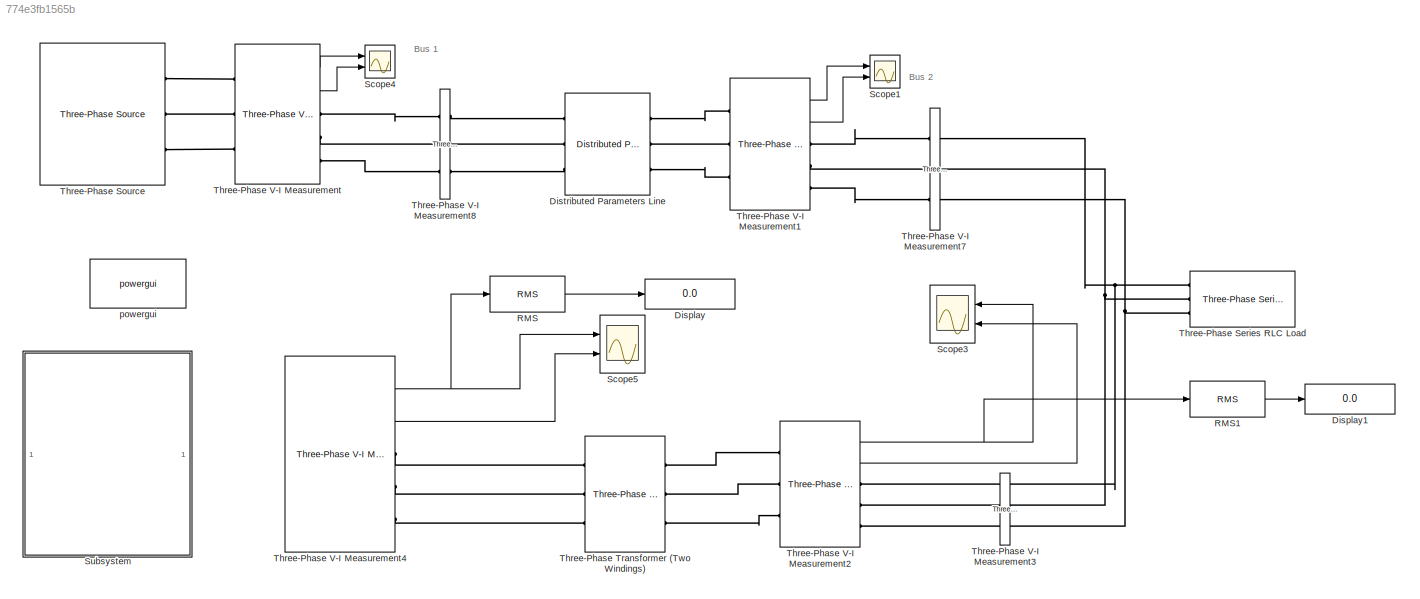
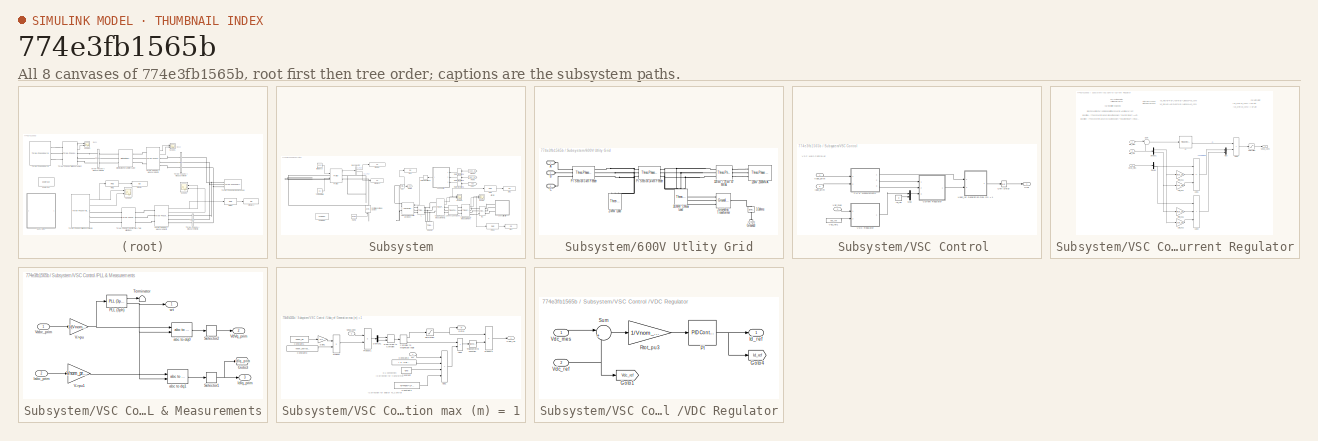
[diagram: thumbnail index - all 8 canvases of the model, root first then tree order]
MODEL slx_774e3fb1565b
KIND model
CONFIG AbsTol = auto
CONFIG EnableMultiTasking = off
CONFIG FixedStep = auto
CONFIG MaxStep = auto
CONFIG MinStep = auto
CONFIG RelTol = 1e-3
CONFIG SampleTimeConstraint = Unconstrained
CONFIG Solver = VariableStepAuto
CONFIG SolverName = VariableStepAuto
CONFIG StartTime = 0.0
CONFIG StopTime = 0.1
BLOCK [Display] Display
  Decimation = 1
  Ports = [1]
BLOCK [Display] Display1
  Decimation = 1
  Ports = [1]
BLOCK [Reference] Distributed Parameters Line  REF=powerlib/Elements/Distributed Parameters Line
  Ports = [0, 0, 0, 0, 0, 3, 3]
  SourceBlock = powerlib/Elements/Distributed Parameters Line
  SourceProductBaseCode = PS
  SourceType = Distributed Parameters Line
BLOCK [Reference] RMS  REF=dspstat3/RMS
  Ports = [1, 1]
  SourceBlock = dspstat3/RMS
  SourceProductBaseCode = DS
  SourceType = RMS
  UserDataPersistent = on
BLOCK [Reference] RMS1  REF=dspstat3/RMS
  Ports = [1, 1]
  SourceBlock = dspstat3/RMS
  SourceProductBaseCode = DS
  SourceType = RMS
  UserDataPersistent = on
BLOCK [Scope] Scope1
  Floating = off
  NumInputPorts = 2
  Ports = [2]
  ScopeSpecificationString = Simulink.scopes.TimeScopeBlockCfg('CurrentConfiguration', extmgr.ConfigurationSet(extmgr.Configuration('Core','General UI',true,'FigureColor',[1 1 1]),extmgr.Configuration('Core','Source UI',true),extmgr.Configuration('Sources','WiredSimulink',true,'DataLoggingVariableName','ScopeData1','DataLoggingSaveFormat','StructureWithTime','DataLoggingDecimation','1','DataLoggingDecimateData',true),extmgr.C...<+4305ch>
BLOCK [Scope] Scope3
  Floating = off
  NumInputPorts = 2
  Ports = [2]
  ScopeSpecificationString = Simulink.scopes.TimeScopeBlockCfg('CurrentConfiguration', extmgr.ConfigurationSet(extmgr.Configuration('Core','General UI',true,'FigureColor',[1 1 1]),extmgr.Configuration('Core','Source UI',true),extmgr.Configuration('Sources','WiredSimulink',true,'DataLoggingVariableName','ScopeData8','DataLoggingSaveFormat','StructureWithTime','DataLoggingMaxPoints','10000000','DataLoggingLimitDataPoints',true,...<+4499ch>
BLOCK [Scope] Scope4
  Floating = off
  NumInputPorts = 2
  Ports = [2]
  ScopeSpecificationString = Simulink.scopes.TimeScopeBlockCfg('CurrentConfiguration', extmgr.ConfigurationSet(extmgr.Configuration('Core','General UI',true,'FigureColor',[1 1 1]),extmgr.Configuration('Core','Source UI',true),extmgr.Configuration('Sources','WiredSimulink',true,'DataLoggingVariableName','ScopeData4','DataLoggingSaveFormat','StructureWithTime','DataLoggingDecimation','1','DataLoggingDecimateData',true),extmgr.C...<+4284ch>
BLOCK [Scope] Scope5
  Floating = off
  NumInputPorts = 2
  Ports = [2]
  ScopeSpecificationString = Simulink.scopes.TimeScopeBlockCfg('CurrentConfiguration', extmgr.ConfigurationSet(extmgr.Configuration('Core','General UI',true,'FigureColor',[1 1 1]),extmgr.Configuration('Core','Source UI',true),extmgr.Configuration('Sources','WiredSimulink',true,'DataLoggingVariableName','ScopeData9','DataLoggingSaveFormat','StructureWithTime','DataLoggingMaxPoints','10000000','DataLoggingLimitDataPoints',true,...<+4501ch>
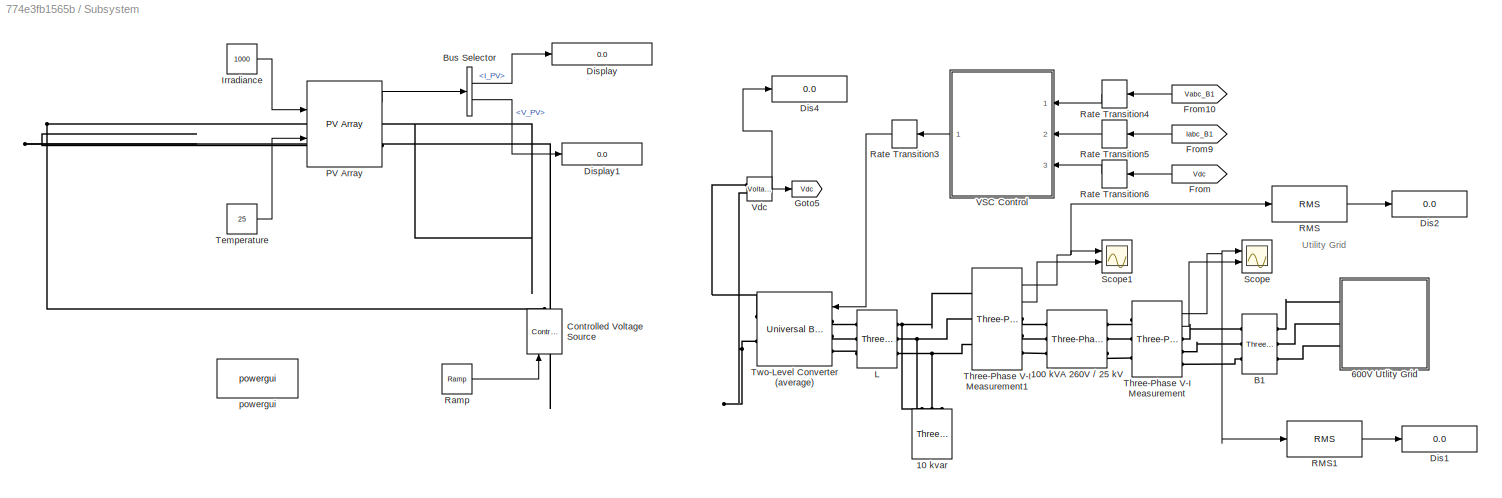
BLOCK [SubSystem] Subsystem
  Ports = []
  RequestExecContextInheritance = off
BLOCK [Reference] Subsystem/10 kvar  REF=powerlib/Elements/Three-Phase
Series RLC Load
  AttributesFormatString = \n
  NameLocation = right
  Ports = [0, 0, 0, 0, 0, 3]
  SourceBlock = powerlib/Elements/Three-Phase\nSeries RLC Load
  SourceProductBaseCode = PS
  SourceType = Three-Phase Series RLC Load
BLOCK [Reference] Subsystem/100 kVA 260V // 25 kV  REF=powerlib/Elements/Three-Phase
Transformer
(Two Windings)
  AttributesFormatString = \n
  Ports = [0, 0, 0, 0, 0, 3, 3]
  SourceBlock = powerlib/Elements/Three-Phase\nTransformer\n(Two Windings)
  SourceProductBaseCode = PS
  SourceType = Three-Phase Transformer (Two Windings)
BLOCK [SubSystem] Subsystem/600V Utlity Grid
  Ports = [0, 0, 0, 0, 0, 3]
  RequestExecContextInheritance = off
BLOCK [Reference] Subsystem/600V Utlity Grid/120 kV // 25 kV 47 MVA  REF=powerlib/Elements/Three-Phase
Transformer
(Two Windings)
  AttributesFormatString = \n
  Ports = [0, 0, 0, 0, 0, 3, 3]
  SourceBlock = powerlib/Elements/Three-Phase\nTransformer\n(Two Windings)
  SourceProductBaseCode = PS
  SourceType = Three-Phase Transformer (Two Windings)
BLOCK [Reference] Subsystem/600V Utlity Grid/120kV 2500MVA  REF=powerlib/Electrical
Sources/Three-Phase Source
  Ports = [0, 0, 0, 0, 0, 0, 3]
  SourceBlock = powerlib/Electrical\nSources/Three-Phase Source
  SourceProductBaseCode = PS
  SourceType = Three-Phase Source
BLOCK [Reference] Subsystem/600V Utlity Grid/2-MW Load  REF=powerlib/Elements/Three-Phase
Parallel RLC Load
  AttributesFormatString = \n
  NameLocation = left
  Ports = [0, 0, 0, 0, 0, 3]
  SourceBlock = powerlib/Elements/Three-Phase\nParallel RLC Load
  SourceProductBaseCode = PS
  SourceType = Three-Phase Parallel RLC Load
BLOCK [Reference] Subsystem/600V Utlity Grid/3.3ohms   REF=powerlib/Elements/Series RLC Branch
  NameLocation = right
  Ports = [0, 0, 0, 0, 0, 1, 1]
  SourceBlock = powerlib/Elements/Series RLC Branch
  SourceProductBaseCode = PS
  SourceType = Series RLC Branch
BLOCK [Reference] Subsystem/600V Utlity Grid/30-MW 2-Mvar Load  REF=powerlib/Elements/Three-Phase
Parallel RLC Load
  AttributesFormatString = \n
  NameLocation = left
  Ports = [0, 0, 0, 0, 0, 3]
  SourceBlock = powerlib/Elements/Three-Phase\nParallel RLC Load
  SourceProductBaseCode = PS
  SourceType = Three-Phase Parallel RLC Load
BLOCK [PMIOPort] Subsystem/600V Utlity Grid/A
  Side = Left
BLOCK [PMIOPort] Subsystem/600V Utlity Grid/B
  Port = 2
  Side = Left
BLOCK [PMIOPort] Subsystem/600V Utlity Grid/C
  Port = 3
  Side = Left
BLOCK [Reference] Subsystem/600V Utlity Grid/Ground3  REF=powerlib/Elements/Ground
  AttributesFormatString = \n
  NameLocation = right
  Ports = [0, 0, 0, 0, 0, 1]
  SourceBlock = powerlib/Elements/Ground
  SourceProductBaseCode = PS
  SourceType = Ground
BLOCK [Reference] Subsystem/600V Utlity Grid/Grounding Transformer   REF=powerlib/Elements/Grounding
Transformer 
  Ports = [0, 0, 0, 0, 0, 3, 1]
  SourceBlock = powerlib/Elements/Grounding\nTransformer
  SourceProductBaseCode = PS
  SourceType = Grounding Transformer
BLOCK [Reference] Subsystem/600V Utlity Grid/PI Section 14 km Feeder  REF=powerlib/Elements/Three-Phase
PI Section Line
  AttributesFormatString = \n
  Ports = [0, 0, 0, 0, 0, 3, 3]
  SourceBlock = powerlib/Elements/Three-Phase\nPI Section Line
  SourceProductBaseCode = PS
  SourceType = Three-Phase PI Section Line
BLOCK [Reference] Subsystem/600V Utlity Grid/PI Section 5 km Feeder  REF=powerlib/Elements/Three-Phase
PI Section Line
  AttributesFormatString = \n
  Ports = [0, 0, 0, 0, 0, 3, 3]
  SourceBlock = powerlib/Elements/Three-Phase\nPI Section Line
  SourceProductBaseCode = PS
  SourceType = Three-Phase PI Section Line
BLOCK [Reference] Subsystem/B1  REF=powerlib/Measurements/Three-Phase
V-I Measurement
  Ports = [0, 0, 0, 0, 0, 3, 3]
  SourceBlock = powerlib/Measurements/Three-Phase\nV-I Measurement
  SourceProductBaseCode = PS
  SourceType = Three-Phase VI Measurement
BLOCK [BusSelector] Subsystem/Bus Selector
  OutputSignals = I_PV,V_PV
  Ports = [1, 2]
BLOCK [Reference] Subsystem/Controlled Voltage Source  REF=powerlib/Electrical
Sources/Controlled Voltage Source
  NameLocation = right
  Ports = [1, 0, 0, 0, 0, 1, 1]
  SourceBlock = powerlib/Electrical\nSources/Controlled Voltage Source
  SourceProductBaseCode = PS
  SourceType = Controlled Voltage Source
BLOCK [Display] Subsystem/Dis1
  Decimation = 2000
  Format = bank
  Ports = [1]
BLOCK [Display] Subsystem/Dis2
  Decimation = 2000
  Format = bank
  Ports = [1]
BLOCK [Display] Subsystem/Dis4
  Decimation = 2000
  Format = bank
  Ports = [1]
BLOCK [Display] Subsystem/Display
  Decimation = 1
  Ports = [1]
BLOCK [Display] Subsystem/Display1
  Decimation = 1
  Ports = [1]
BLOCK [From] Subsystem/From
  GotoTag = Vdc
  TagVisibility = global
BLOCK [From] Subsystem/From10
  CloseFcn = tagdialog Close
  GotoTag = Vabc_B1
  TagVisibility = global
BLOCK [From] Subsystem/From9
  CloseFcn = tagdialog Close
  GotoTag = Iabc_B1
  TagVisibility = global
BLOCK [Goto] Subsystem/Goto5
  GotoTag = Vdc
  TagVisibility = global
BLOCK [Constant] Subsystem/Irradiance
  Value = 1000
BLOCK [Reference] Subsystem/L  REF=powerlib/Elements/Three-Phase
Series RLC Branch
  AttributesFormatString = \n
  Ports = [0, 0, 0, 0, 0, 3, 3]
  SourceBlock = powerlib/Elements/Three-Phase\nSeries RLC Branch
  SourceProductBaseCode = PS
  SourceType = Three-Phase Series RLC Branch
BLOCK [Reference] Subsystem/PV Array  REF=re_lib/Solar/PV Array
  Ports = [2, 1, 0, 0, 0, 0, 2]
  SourceBlock = re_lib/Solar/PV Array
  SourceProductBaseCode = PS
  SourceType = PV array
BLOCK [Reference] Subsystem/RMS  REF=dspstat3/RMS
  Ports = [1, 1]
  SourceBlock = dspstat3/RMS
  SourceProductBaseCode = DS
  SourceType = RMS
  UserDataPersistent = on
BLOCK [Reference] Subsystem/RMS1  REF=dspstat3/RMS
  Ports = [1, 1]
  SourceBlock = dspstat3/RMS
  SourceProductBaseCode = DS
  SourceType = RMS
  UserDataPersistent = on
BLOCK [Reference] Subsystem/Ramp  REF=simulink/Sources/Ramp
  Ports = [0, 1]
  SourceBlock = simulink/Sources/Ramp
  SourceProductBaseCode = SL
  SourceType = Ramp
BLOCK [RateTransition] Subsystem/Rate Transition3
  NameLocation = top
  OutPortSampleTime = Ts_Power
BLOCK [RateTransition] Subsystem/Rate Transition4
  OutPortSampleTime = Ts_Control
BLOCK [RateTransition] Subsystem/Rate Transition5
  OutPortSampleTime = Ts_Control
BLOCK [RateTransition] Subsystem/Rate Transition6
  OutPortSampleTime = Ts_Control
BLOCK [Scope] Subsystem/Scope
  Floating = off
  NumInputPorts = 2
  Ports = [2]
  ScopeSpecificationString = Simulink.scopes.TimeScopeBlockCfg('CurrentConfiguration', extmgr.ConfigurationSet(extmgr.Configuration('Core','General UI',true),extmgr.Configuration('Core','Source UI',true),extmgr.Configuration('Sources','WiredSimulink',true,'DataLoggingVariableName','ScopeData1'),extmgr.Configuration('Visuals','Time Domain',true,'SerializedDisplays',{struct('MinYLimReal','-24960.74448','MaxYLimReal','21962.5171...<+2321ch>
BLOCK [Scope] Subsystem/Scope1
  Floating = off
  NumInputPorts = 2
  Ports = [2]
  ScopeSpecificationString = Simulink.scopes.TimeScopeBlockCfg('CurrentConfiguration', extmgr.ConfigurationSet(extmgr.Configuration('Core','General UI',true),extmgr.Configuration('Core','Source UI',true),extmgr.Configuration('Sources','WiredSimulink',true,'DataLoggingVariableName','ScopeData2'),extmgr.Configuration('Visuals','Time Domain',true,'SerializedDisplays',{struct('MinYLimReal','-252.02274','MaxYLimReal','226.10401','...<+2321ch>
BLOCK [Constant] Subsystem/Temperature
  Value = 25
BLOCK [Reference] Subsystem/Three-Phase V-I Measurement  REF=powerlib/Measurements/Three-Phase
V-I Measurement
  Ports = [0, 2, 0, 0, 0, 3, 3]
  SourceBlock = powerlib/Measurements/Three-Phase\nV-I Measurement
  SourceProductBaseCode = PS
  SourceType = Three-Phase VI Measurement
BLOCK [Reference] Subsystem/Three-Phase V-I Measurement1  REF=powerlib/Measurements/Three-Phase
V-I Measurement
  Ports = [0, 2, 0, 0, 0, 3, 3]
  SourceBlock = powerlib/Measurements/Three-Phase\nV-I Measurement
  SourceProductBaseCode = PS
  SourceType = Three-Phase VI Measurement
BLOCK [Reference] Subsystem/Two-Level Converter (average)  REF=powerlib/Power
Electronics/Universal Bridge
  Ports = [1, 0, 0, 0, 0, 3, 2]
  SourceBlock = powerlib/Power\nElectronics/Universal Bridge
  SourceProductBaseCode = PS
  SourceType = Universal Bridge
BLOCK [SubSystem] Subsystem/VSC Control 
  NameLocation = top
  Ports = [3, 1]
  RequestExecContextInheritance = off
BLOCK [SubSystem] Subsystem/VSC Control /Current Regulator
  Ports = [3, 1]
  RequestExecContextInheritance = off
BLOCK [Sum] Subsystem/VSC Control /Current Regulator/Add1
  IconShape = rectangular
  Inputs = ++-
  Ports = [3, 1]
BLOCK [Sum] Subsystem/VSC Control /Current Regulator/Add2
  IconShape = rectangular
  Ports = [2, 1]
BLOCK [Sum] Subsystem/VSC Control /Current Regulator/Add3
  IconShape = rectangular
  Inputs = +++
  Ports = [3, 1]
BLOCK [Demux] Subsystem/VSC Control /Current Regulator/Demux
  Outputs = 2
  Ports = [1, 2]
BLOCK [Demux] Subsystem/VSC Control /Current Regulator/Demux1
  Outputs = 2
  Ports = [1, 2]
BLOCK [Inport] Subsystem/VSC Control /Current Regulator/IdIq_mes
  Port = 2
  PortDimensions = 2
BLOCK [Inport] Subsystem/VSC Control /Current Regulator/IdIq_ref
  Port = 3
  PortDimensions = 2
BLOCK [Gain] Subsystem/VSC Control /Current Regulator/Ltot_pu1
  Gain = Ltot_pu
  OutDataTypeStr = Inherit: Same as input
  ParamDataTypeStr = Inherit: Same as input
  SaturateOnIntegerOverflow = on
BLOCK [Gain] Subsystem/VSC Control /Current Regulator/Ltot_pu2
  Gain = Ltot_pu
  OutDataTypeStr = Inherit: Same as input
  ParamDataTypeStr = Inherit: Same as input
  SaturateOnIntegerOverflow = on
BLOCK [Mux] Subsystem/VSC Control /Current Regulator/Mux
  DisplayOption = bar
  Inputs = 2
  Ports = [2, 1]
BLOCK [Reference] Subsystem/VSC Control /Current Regulator/PI  REF=simulink/Continuous/PID Controller
  Ports = [1, 1]
  SourceBlock = simulink/Continuous/PID Controller
  SourceProductBaseCode = SL
  SourceType = PID 1dof
BLOCK [Gain] Subsystem/VSC Control /Current Regulator/Rtot_pu1
  Gain = Rtot_pu
  NameLocation = top
  OutDataTypeStr = Inherit: Same as input
  ParamDataTypeStr = Inherit: Same as input
  SaturateOnIntegerOverflow = on
BLOCK [Gain] Subsystem/VSC Control /Current Regulator/Rtot_pu5
  Gain = Rtot_pu
  NameLocation = top
  OutDataTypeStr = Inherit: Same as input
  ParamDataTypeStr = Inherit: Same as input
  SaturateOnIntegerOverflow = on
BLOCK [Saturate] Subsystem/VSC Control /Current Regulator/Saturation
  LowerLimit = -2
  UpperLimit = 2
BLOCK [Sum] Subsystem/VSC Control /Current Regulator/Sum
  Inputs = |-+
  Ports = [2, 1]
BLOCK [Outport] Subsystem/VSC Control /Current Regulator/VdVq_conv
  VectorParamsAs1DForOutWhenUnconnected = off
BLOCK [Inport] Subsystem/VSC Control /Current Regulator/VdVq_mes
  PortDimensions = 2
BLOCK [Inport] Subsystem/VSC Control /Iabc_prim
  Port = 2
  PortDimensions = 3
BLOCK [Constant] Subsystem/VSC Control /Iq_ref
  Value = 0
BLOCK [Mux] Subsystem/VSC Control /Mux
  DisplayOption = bar
  Inputs = 2
  Ports = [2, 1]
BLOCK [SubSystem] Subsystem/VSC Control /PLL & Measurements
  Ports = [2, 3]
  RequestExecContextInheritance = off
BLOCK [Goto] Subsystem/VSC Control /PLL & Measurements/Goto3
  GotoTag = IdIq_prim
  TagVisibility = global
BLOCK [Inport] Subsystem/VSC Control /PLL & Measurements/Iabc_prim
  Port = 2
BLOCK [Outport] Subsystem/VSC Control /PLL & Measurements/IdIq_prim
  Port = 3
  VectorParamsAs1DForOutWhenUnconnected = off
BLOCK [Reference] Subsystem/VSC Control /PLL & Measurements/PLL (3ph)  REF=powerlib_meascontrol/PLL/PLL
(3ph)
  Ports = [1, 2]
  SourceBlock = powerlib_meascontrol/PLL/PLL\n(3ph)
  SourceProductBaseCode = PS
  SourceType = PLL (3ph)
BLOCK [Selector] Subsystem/VSC Control /PLL & Measurements/Selector1
  IndexOptions = Index vector (dialog)
  Indices = [1 2]
  InputPortWidth = 3
  OutputSizes = 1
  Ports = [1, 1]
BLOCK [Selector] Subsystem/VSC Control /PLL & Measurements/Selector2
  IndexOptions = Index vector (dialog)
  Indices = [1 2]
  InputPortWidth = 3
  OutputSizes = 1
  Ports = [1, 1]
BLOCK [Terminator] Subsystem/VSC Control /PLL & Measurements/Terminator
BLOCK [Gain] Subsystem/VSC Control /PLL & Measurements/V->pu
  Gain = 1/(Vnom_prim*sqrt(2)/sqrt(3))
  OutDataTypeStr = Inherit: Same as input
  ParamDataTypeStr = Inherit: Same as input
  SaturateOnIntegerOverflow = on
BLOCK [Gain] Subsystem/VSC Control /PLL & Measurements/V->pu1
  Gain = Vnom_prim*sqrt(3)/Pnom/sqrt(2)
  OutDataTypeStr = Inherit: Same as input
  ParamDataTypeStr = Inherit: Same as input
  SaturateOnIntegerOverflow = on
BLOCK [Inport] Subsystem/VSC Control /PLL & Measurements/Vabc_prim
BLOCK [Outport] Subsystem/VSC Control /PLL & Measurements/VdVq_prim
  Port = 2
  VectorParamsAs1DForOutWhenUnconnected = off
BLOCK [Reference] Subsystem/VSC Control /PLL & Measurements/abc to dq0  REF=powerlib_meascontrol/Transformations/abc to dq0
  Ports = [2, 1]
  SourceBlock = powerlib_meascontrol/Transformations/abc to dq0
  SourceProductBaseCode = PS
  SourceType = abc to dq0 Transformation
BLOCK [Reference] Subsystem/VSC Control /PLL & Measurements/abc to dq1  REF=powerlib_meascontrol/Transformations/abc to dq0
  Ports = [2, 1]
  SourceBlock = powerlib_meascontrol/Transformations/abc to dq0
  SourceProductBaseCode = PS
  SourceType = abc to dq0 Transformation
BLOCK [Outport] Subsystem/VSC Control /PLL & Measurements/wt
  VectorParamsAs1DForOutWhenUnconnected = off
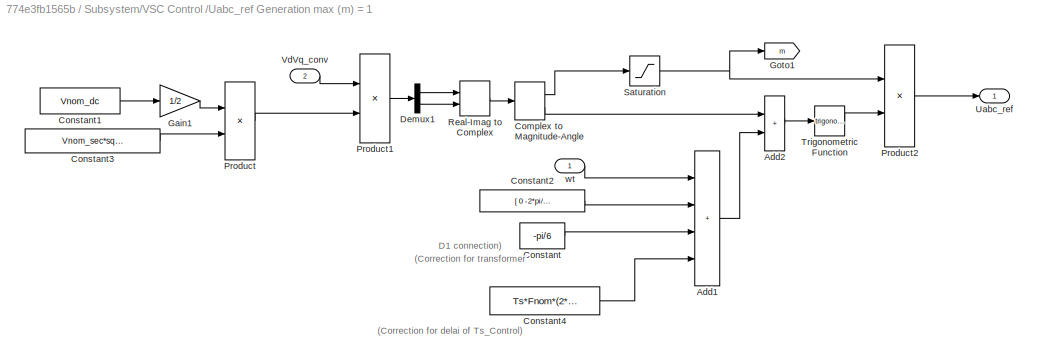
BLOCK [SubSystem] Subsystem/VSC Control /Uabc_ref Generation max (m) = 1
  Ports = [2, 1]
  RequestExecContextInheritance = off
BLOCK [Sum] Subsystem/VSC Control /Uabc_ref Generation max (m) = 1/Add1
  IconShape = rectangular
  Inputs = ++++
  Ports = [4, 1]
BLOCK [Sum] Subsystem/VSC Control /Uabc_ref Generation max (m) = 1/Add2
  IconShape = rectangular
  Ports = [2, 1]
BLOCK [ComplexToMagnitudeAngle] Subsystem/VSC Control /Uabc_ref Generation max (m) = 1/Complex to Magnitude-Angle
  Ports = [1, 2]
BLOCK [Constant] Subsystem/VSC Control /Uabc_ref Generation max (m) = 1/Constant
  Value = -pi/6
BLOCK [Constant] Subsystem/VSC Control /Uabc_ref Generation max (m) = 1/Constant1
  Value = Vnom_dc
BLOCK [Constant] Subsystem/VSC Control /Uabc_ref Generation max (m) = 1/Constant2
  Value = [ 0  -2*pi/3  2*pi/3  ]
BLOCK [Constant] Subsystem/VSC Control /Uabc_ref Generation max (m) = 1/Constant3
  Value = Vnom_sec*sqrt(2)/sqrt(3)
BLOCK [Constant] Subsystem/VSC Control /Uabc_ref Generation max (m) = 1/Constant4
  Value = Ts*Fnom*(2*pi)
BLOCK [Demux] Subsystem/VSC Control /Uabc_ref Generation max (m) = 1/Demux1
  Outputs = 2
  Ports = [1, 2]
BLOCK [Gain] Subsystem/VSC Control /Uabc_ref Generation max (m) = 1/Gain1
  Gain = 1/2
BLOCK [Goto] Subsystem/VSC Control /Uabc_ref Generation max (m) = 1/Goto1
  GotoTag = m
  TagVisibility = global
BLOCK [Product] Subsystem/VSC Control /Uabc_ref Generation max (m) = 1/Product
  Inputs = */
  Ports = [2, 1]
  RndMeth = Zero
BLOCK [Product] Subsystem/VSC Control /Uabc_ref Generation max (m) = 1/Product1
  Inputs = */
  Ports = [2, 1]
  RndMeth = Zero
BLOCK [Product] Subsystem/VSC Control /Uabc_ref Generation max (m) = 1/Product2
  Inputs = **
  Ports = [2, 1]
  RndMeth = Zero
BLOCK [RealImagToComplex] Subsystem/VSC Control /Uabc_ref Generation max (m) = 1/Real-Imag to Complex
  Ports = [2, 1]
BLOCK [Saturate] Subsystem/VSC Control /Uabc_ref Generation max (m) = 1/Saturation
  LowerLimit = 0
  UpperLimit = 1
BLOCK [Trigonometry] Subsystem/VSC Control /Uabc_ref Generation max (m) = 1/Trigonometric Function
  Ports = [1, 1]
BLOCK [Outport] Subsystem/VSC Control /Uabc_ref Generation max (m) = 1/Uabc_ref
  VectorParamsAs1DForOutWhenUnconnected = off
BLOCK [Inport] Subsystem/VSC Control /Uabc_ref Generation max (m) = 1/VdVq_conv
  Port = 2
BLOCK [Inport] Subsystem/VSC Control /Uabc_ref Generation max (m) = 1/wt
BLOCK [UnitDelay] Subsystem/VSC Control /Unit Delay
  HasFrameUpgradeWarning = on
  SampleTime = Ts_Control
BLOCK [Outport] Subsystem/VSC Control /Uref
  NameLocation = top
  VectorParamsAs1DForOutWhenUnconnected = off
BLOCK [SubSystem] Subsystem/VSC Control /VDC Regulator
  Ports = [2, 1]
  RequestExecContextInheritance = off
BLOCK [Goto] Subsystem/VSC Control /VDC Regulator/Goto1
  GotoTag = Vdc_ref
  TagVisibility = global
BLOCK [Goto] Subsystem/VSC Control /VDC Regulator/Goto4
  GotoTag = Id_ref
  TagVisibility = global
BLOCK [Outport] Subsystem/VSC Control /VDC Regulator/Id_ref
  InitialOutput = 0
  SampleTime = Ts
  VectorParamsAs1DForOutWhenUnconnected = off
BLOCK [Reference] Subsystem/VSC Control /VDC Regulator/PI  REF=simulink/Continuous/PID Controller
  Ports = [1, 1]
  SourceBlock = simulink/Continuous/PID Controller
  SourceProductBaseCode = SL
  SourceType = PID 1dof
BLOCK [Gain] Subsystem/VSC Control /VDC Regulator/Rtot_pu3
  Gain = 1/Vnom_dc
  OutDataTypeStr = Inherit: Same as input
  ParamDataTypeStr = Inherit: Same as input
  SaturateOnIntegerOverflow = on
BLOCK [Sum] Subsystem/VSC Control /VDC Regulator/Sum
  Inputs = |+-
  Ports = [2, 1]
BLOCK [Inport] Subsystem/VSC Control /VDC Regulator/Vdc_mes
  PortDimensions = 1
BLOCK [Inport] Subsystem/VSC Control /VDC Regulator/Vdc_ref
  Port = 2
  PortDimensions = 1
BLOCK [Inport] Subsystem/VSC Control /Vabc_prim
  PortDimensions = 3
BLOCK [Inport] Subsystem/VSC Control /Vdc_mes
  Port = 3
  PortDimensions = 1
BLOCK [Constant] Subsystem/VSC Control /Vdc_ref1
  Value = Vdc_ref
BLOCK [Reference] Subsystem/Vdc   REF=powerlib/Measurements/Voltage Measurement
  AttributesFormatString = \n
  NameLocation = top
  Ports = [0, 1, 0, 0, 0, 2]
  SourceBlock = powerlib/Measurements/Voltage Measurement
  SourceProductBaseCode = PS
  SourceType = Voltage Measurement
  Tag = PoWeRsYsTeMmEaSuReMeNt
BLOCK [Reference] Subsystem/powergui  REF=powerlib/powergui
  Ports = []
  Priority = 1
  SourceBlock = powerlib/powergui
  SourceProductBaseCode = PS
  SourceType = PSB option menu block
BLOCK [Reference] Three-Phase Series RLC Load  REF=powerlib/Elements/Three-Phase
Series RLC Load
  AttributesFormatString = \n
  NameLocation = top
  Ports = [0, 0, 0, 0, 0, 3]
  SourceBlock = powerlib/Elements/Three-Phase\nSeries RLC Load
  SourceProductBaseCode = PS
  SourceType = Three-Phase Series RLC Load
BLOCK [Reference] Three-Phase Source  REF=powerlib/Electrical
Sources/Three-Phase Source
  Ports = [0, 0, 0, 0, 0, 0, 3]
  SourceBlock = powerlib/Electrical\nSources/Three-Phase Source
  SourceProductBaseCode = PS
  SourceType = Three-Phase Source
BLOCK [Reference] Three-Phase Transformer (Two Windings)  REF=powerlib/Elements/Three-Phase
Transformer
(Two Windings)
  Ports = [0, 0, 0, 0, 0, 3, 3]
  SourceBlock = powerlib/Elements/Three-Phase\nTransformer\n(Two Windings)
  SourceProductBaseCode = PS
  SourceType = Three-Phase Transformer (Two Windings)
BLOCK [Reference] Three-Phase V-I Measurement  REF=powerlib/Measurements/Three-Phase
V-I Measurement
  Ports = [0, 2, 0, 0, 0, 3, 3]
  SourceBlock = powerlib/Measurements/Three-Phase\nV-I Measurement
  SourceProductBaseCode = PS
  SourceType = Three-Phase VI Measurement
BLOCK [Reference] Three-Phase V-I Measurement1  REF=powerlib/Measurements/Three-Phase
V-I Measurement
  Ports = [0, 2, 0, 0, 0, 3, 3]
  SourceBlock = powerlib/Measurements/Three-Phase\nV-I Measurement
  SourceProductBaseCode = PS
  SourceType = Three-Phase VI Measurement
BLOCK [Reference] Three-Phase V-I Measurement2  REF=powerlib/Measurements/Three-Phase
V-I Measurement
  Ports = [0, 2, 0, 0, 0, 3, 3]
  SourceBlock = powerlib/Measurements/Three-Phase\nV-I Measurement
  SourceProductBaseCode = PS
  SourceType = Three-Phase VI Measurement
BLOCK [Reference] Three-Phase V-I Measurement3  REF=powerlib/Measurements/Three-Phase
V-I Measurement
  Ports = [0, 0, 0, 0, 0, 3, 3]
  SourceBlock = powerlib/Measurements/Three-Phase\nV-I Measurement
  SourceProductBaseCode = PS
  SourceType = Three-Phase VI Measurement
BLOCK [Reference] Three-Phase V-I Measurement4  REF=powerlib/Measurements/Three-Phase
V-I Measurement
  Ports = [0, 2, 0, 0, 0, 3, 3]
  SourceBlock = powerlib/Measurements/Three-Phase\nV-I Measurement
  SourceProductBaseCode = PS
  SourceType = Three-Phase VI Measurement
BLOCK [Reference] Three-Phase V-I Measurement7  REF=powerlib/Measurements/Three-Phase
V-I Measurement
  Ports = [0, 0, 0, 0, 0, 3, 3]
  SourceBlock = powerlib/Measurements/Three-Phase\nV-I Measurement
  SourceProductBaseCode = PS
  SourceType = Three-Phase VI Measurement
BLOCK [Reference] Three-Phase V-I Measurement8  REF=powerlib/Measurements/Three-Phase
V-I Measurement
  Ports = [0, 0, 0, 0, 0, 3, 3]
  SourceBlock = powerlib/Measurements/Three-Phase\nV-I Measurement
  SourceProductBaseCode = PS
  SourceType = Three-Phase VI Measurement
BLOCK [Reference] powergui  REF=powerlib/powergui
  Ports = []
  Priority = 1
  SourceBlock = powerlib/powergui
  SourceProductBaseCode = PS
  SourceType = PSB option menu block
ANNOTATION (root): Bus 1
ANNOTATION (root): Bus 2
ANNOTATION Subsystem: Utility Grid
ANNOTATION Subsystem/VSC Control : VSC Main Controller
ANNOTATION Subsystem/VSC Control /Current Regulator: (Vd_prim - Vd_conv) ~= + Iq * Ltot
ANNOTATION Subsystem/VSC Control /Current Regulator: (Vq_prim - Vq_conv) ~ = - Id * Ltot
ANNOTATION Subsystem/VSC Control /Current Regulator: Current Regulator (with feedforward)
ANNOTATION Subsystem/VSC Control /Current Regulator: For Ltot >> Rtot :
ANNOTATION Subsystem/VSC Control /Current Regulator: Id positive --> The converter generates active power ("Inverter mode") = Active Power P positive
ANNOTATION Subsystem/VSC Control /Current Regulator: Iq positive --> The converter absorbs reactive power ("Inductive mode") = Reactive Power Q negative
ANNOTATION Subsystem/VSC Control /Current Regulator: Ltot = Lxfo + Lchoke Rtot = Rxfo + Rchoke
ANNOTATION Subsystem/VSC Control /Current Regulator: Sign Convention: Current going out of the converter = positive current
ANNOTATION Subsystem/VSC Control /Current Regulator: Vd_mes + Id*R - Iq*L + deriv(Id)*L/wbase= Vd_conv
ANNOTATION Subsystem/VSC Control /Current Regulator: Vq_mes + Id*L + Iq*R + deriv(Iq)*L/wbase= Vq_conv
ANNOTATION Subsystem/VSC Control /Current Regulator: harmonic filter neglected
ANNOTATION Subsystem/VSC Control /Uabc_ref Generation max (m) = 1: (Correction for delai of Ts_Control)
ANNOTATION Subsystem/VSC Control /Uabc_ref Generation max (m) = 1: (Correction for transformer D1 connection)
LINE RMS1:1 -> Display1:1
LINE RMS:1 -> Display:1
LINE Subsystem/Bus Selector:1 -> Subsystem/Display:1
LINE Subsystem/Bus Selector:2 -> Subsystem/Display1:1
LINE Subsystem/From10:1 -> Subsystem/Rate Transition4:1
LINE Subsystem/From9:1 -> Subsystem/Rate Transition5:1
LINE Subsystem/From:1 -> Subsystem/Rate Transition6:1
LINE Subsystem/Irradiance:1 -> Subsystem/PV Array:1
LINE Subsystem/PV Array:1 -> Subsystem/Bus Selector:1
LINE Subsystem/RMS1:1 -> Subsystem/Dis1:1
LINE Subsystem/RMS:1 -> Subsystem/Dis2:1
LINE Subsystem/Ramp:1 -> Subsystem/Controlled Voltage Source:1
LINE Subsystem/Rate Transition3:1 -> Subsystem/Two-Level Converter (average):1
LINE Subsystem/Rate Transition4:1 -> Subsystem/VSC Control :1
LINE Subsystem/Rate Transition5:1 -> Subsystem/VSC Control :2
LINE Subsystem/Rate Transition6:1 -> Subsystem/VSC Control :3
LINE Subsystem/Temperature:1 -> Subsystem/PV Array:2
NET Subsystem/Three-Phase V-I Measurement1:1 -> Subsystem/RMS:1, Subsystem/Scope1:1
LINE Subsystem/Three-Phase V-I Measurement1:2 -> Subsystem/Scope1:2
NET Subsystem/Three-Phase V-I Measurement:1 -> Subsystem/RMS1:1, Subsystem/Scope:1
LINE Subsystem/Three-Phase V-I Measurement:2 -> Subsystem/Scope:2
LINE Subsystem/VSC Control /Current Regulator/Add1:1 -> Subsystem/VSC Control /Current Regulator/Mux:1
LINE Subsystem/VSC Control /Current Regulator/Add2:1 -> Subsystem/VSC Control /Current Regulator/Saturation:1
LINE Subsystem/VSC Control /Current Regulator/Add3:1 -> Subsystem/VSC Control /Current Regulator/Mux:2
NET Subsystem/VSC Control /Current Regulator/Demux1:1 -> Subsystem/VSC Control /Current Regulator/Ltot_pu2:1, Subsystem/VSC Control /Current Regulator/Rtot_pu1:1
NET Subsystem/VSC Control /Current Regulator/Demux1:2 -> Subsystem/VSC Control /Current Regulator/Ltot_pu1:1, Subsystem/VSC Control /Current Regulator/Rtot_pu5:1
LINE Subsystem/VSC Control /Current Regulator/Demux:1 -> Subsystem/VSC Control /Current Regulator/Add1:1
LINE Subsystem/VSC Control /Current Regulator/Demux:2 -> Subsystem/VSC Control /Current Regulator/Add3:1
LINE Subsystem/VSC Control /Current Regulator/IdIq_mes:1 -> Subsystem/VSC Control /Current Regulator/Sum:1
NET Subsystem/VSC Control /Current Regulator/IdIq_ref:1 -> Subsystem/VSC Control /Current Regulator/Demux1:1, Subsystem/VSC Control /Current Regulator/Sum:2
LINE Subsystem/VSC Control /Current Regulator/Ltot_pu1:1 -> Subsystem/VSC Control /Current Regulator/Add1:3
LINE Subsystem/VSC Control /Current Regulator/Ltot_pu2:1 -> Subsystem/VSC Control /Current Regulator/Add3:3
LINE Subsystem/VSC Control /Current Regulator/Mux:1 -> Subsystem/VSC Control /Current Regulator/Add2:2
LINE Subsystem/VSC Control /Current Regulator/PI:1 -> Subsystem/VSC Control /Current Regulator/Add2:1
LINE Subsystem/VSC Control /Current Regulator/Rtot_pu1:1 -> Subsystem/VSC Control /Current Regulator/Add1:2
LINE Subsystem/VSC Control /Current Regulator/Rtot_pu5:1 -> Subsystem/VSC Control /Current Regulator/Add3:2
LINE Subsystem/VSC Control /Current Regulator/Saturation:1 -> Subsystem/VSC Control /Current Regulator/VdVq_conv:1
LINE Subsystem/VSC Control /Current Regulator/Sum:1 -> Subsystem/VSC Control /Current Regulator/PI:1
LINE Subsystem/VSC Control /Current Regulator/VdVq_mes:1 -> Subsystem/VSC Control /Current Regulator/Demux:1
LINE Subsystem/VSC Control /Current Regulator:1 -> Subsystem/VSC Control /Uabc_ref Generation max (m) = 1:2
LINE Subsystem/VSC Control /Iabc_prim:1 -> Subsystem/VSC Control /PLL & Measurements:2
LINE Subsystem/VSC Control /Iq_ref:1 -> Subsystem/VSC Control /Mux:2
LINE Subsystem/VSC Control /Mux:1 -> Subsystem/VSC Control /Current Regulator:3
LINE Subsystem/VSC Control /PLL & Measurements/Iabc_prim:1 -> Subsystem/VSC Control /PLL & Measurements/V->pu1:1
LINE Subsystem/VSC Control /PLL & Measurements/PLL (3ph):1 -> Subsystem/VSC Control /PLL & Measurements/Terminator:1
NET Subsystem/VSC Control /PLL & Measurements/PLL (3ph):2 -> Subsystem/VSC Control /PLL & Measurements/abc to dq0:2, Subsystem/VSC Control /PLL & Measurements/abc to dq1:2, Subsystem/VSC Control /PLL & Measurements/wt:1
NET Subsystem/VSC Control /PLL & Measurements/Selector1:1 -> Subsystem/VSC Control /PLL & Measurements/Goto3:1, Subsystem/VSC Control /PLL & Measurements/IdIq_prim:1
LINE Subsystem/VSC Control /PLL & Measurements/Selector2:1 -> Subsystem/VSC Control /PLL & Measurements/VdVq_prim:1
LINE Subsystem/VSC Control /PLL & Measurements/V->pu1:1 -> Subsystem/VSC Control /PLL & Measurements/abc to dq1:1
NET Subsystem/VSC Control /PLL & Measurements/V->pu:1 -> Subsystem/VSC Control /PLL & Measurements/PLL (3ph):1, Subsystem/VSC Control /PLL & Measurements/abc to dq0:1
LINE Subsystem/VSC Control /PLL & Measurements/Vabc_prim:1 -> Subsystem/VSC Control /PLL & Measurements/V->pu:1
LINE Subsystem/VSC Control /PLL & Measurements/abc to dq0:1 -> Subsystem/VSC Control /PLL & Measurements/Selector2:1
LINE Subsystem/VSC Control /PLL & Measurements/abc to dq1:1 -> Subsystem/VSC Control /PLL & Measurements/Selector1:1
LINE Subsystem/VSC Control /PLL & Measurements:1 -> Subsystem/VSC Control /Uabc_ref Generation max (m) = 1:1
LINE Subsystem/VSC Control /PLL & Measurements:2 -> Subsystem/VSC Control /Current Regulator:1
LINE Subsystem/VSC Control /PLL & Measurements:3 -> Subsystem/VSC Control /Current Regulator:2
LINE Subsystem/VSC Control /Uabc_ref Generation max (m) = 1/Add1:1 -> Subsystem/VSC Control /Uabc_ref Generation max (m) = 1/Add2:2
LINE Subsystem/VSC Control /Uabc_ref Generation max (m) = 1/Add2:1 -> Subsystem/VSC Control /Uabc_ref Generation max (m) = 1/Trigonometric Function:1
LINE Subsystem/VSC Control /Uabc_ref Generation max (m) = 1/Complex to Magnitude-Angle:1 -> Subsystem/VSC Control /Uabc_ref Generation max (m) = 1/Saturation:1
LINE Subsystem/VSC Control /Uabc_ref Generation max (m) = 1/Complex to Magnitude-Angle:2 -> Subsystem/VSC Control /Uabc_ref Generation max (m) = 1/Add2:1
LINE Subsystem/VSC Control /Uabc_ref Generation max (m) = 1/Constant1:1 -> Subsystem/VSC Control /Uabc_ref Generation max (m) = 1/Gain1:1
LINE Subsystem/VSC Control /Uabc_ref Generation max (m) = 1/Constant2:1 -> Subsystem/VSC Control /Uabc_ref Generation max (m) = 1/Add1:2
LINE Subsystem/VSC Control /Uabc_ref Generation max (m) = 1/Constant3:1 -> Subsystem/VSC Control /Uabc_ref Generation max (m) = 1/Product:2
LINE Subsystem/VSC Control /Uabc_ref Generation max (m) = 1/Constant4:1 -> Subsystem/VSC Control /Uabc_ref Generation max (m) = 1/Add1:4
LINE Subsystem/VSC Control /Uabc_ref Generation max (m) = 1/Constant:1 -> Subsystem/VSC Control /Uabc_ref Generation max (m) = 1/Add1:3
LINE Subsystem/VSC Control /Uabc_ref Generation max (m) = 1/Demux1:1 -> Subsystem/VSC Control /Uabc_ref Generation max (m) = 1/Real-Imag to Complex:1
LINE Subsystem/VSC Control /Uabc_ref Generation max (m) = 1/Demux1:2 -> Subsystem/VSC Control /Uabc_ref Generation max (m) = 1/Real-Imag to Complex:2
LINE Subsystem/VSC Control /Uabc_ref Generation max (m) = 1/Gain1:1 -> Subsystem/VSC Control /Uabc_ref Generation max (m) = 1/Product:1
LINE Subsystem/VSC Control /Uabc_ref Generation max (m) = 1/Product1:1 -> Subsystem/VSC Control /Uabc_ref Generation max (m) = 1/Demux1:1
LINE Subsystem/VSC Control /Uabc_ref Generation max (m) = 1/Product2:1 -> Subsystem/VSC Control /Uabc_ref Generation max (m) = 1/Uabc_ref:1
LINE Subsystem/VSC Control /Uabc_ref Generation max (m) = 1/Product:1 -> Subsystem/VSC Control /Uabc_ref Generation max (m) = 1/Product1:2
LINE Subsystem/VSC Control /Uabc_ref Generation max (m) = 1/Real-Imag to Complex:1 -> Subsystem/VSC Control /Uabc_ref Generation max (m) = 1/Complex to Magnitude-Angle:1
NET Subsystem/VSC Control /Uabc_ref Generation max (m) = 1/Saturation:1 -> Subsystem/VSC Control /Uabc_ref Generation max (m) = 1/Goto1:1, Subsystem/VSC Control /Uabc_ref Generation max (m) = 1/Product2:1
LINE Subsystem/VSC Control /Uabc_ref Generation max (m) = 1/Trigonometric Function:1 -> Subsystem/VSC Control /Uabc_ref Generation max (m) = 1/Product2:2
LINE Subsystem/VSC Control /Uabc_ref Generation max (m) = 1/VdVq_conv:1 -> Subsystem/VSC Control /Uabc_ref Generation max (m) = 1/Product1:1
LINE Subsystem/VSC Control /Uabc_ref Generation max (m) = 1/wt:1 -> Subsystem/VSC Control /Uabc_ref Generation max (m) = 1/Add1:1
LINE Subsystem/VSC Control /Uabc_ref Generation max (m) = 1:1 -> Subsystem/VSC Control /Unit Delay:1
LINE Subsystem/VSC Control /Unit Delay:1 -> Subsystem/VSC Control /Uref:1
NET Subsystem/VSC Control /VDC Regulator/PI:1 -> Subsystem/VSC Control /VDC Regulator/Goto4:1, Subsystem/VSC Control /VDC Regulator/Id_ref:1
LINE Subsystem/VSC Control /VDC Regulator/Rtot_pu3:1 -> Subsystem/VSC Control /VDC Regulator/PI:1
LINE Subsystem/VSC Control /VDC Regulator/Sum:1 -> Subsystem/VSC Control /VDC Regulator/Rtot_pu3:1
LINE Subsystem/VSC Control /VDC Regulator/Vdc_mes:1 -> Subsystem/VSC Control /VDC Regulator/Sum:1
NET Subsystem/VSC Control /VDC Regulator/Vdc_ref:1 -> Subsystem/VSC Control /VDC Regulator/Goto1:1, Subsystem/VSC Control /VDC Regulator/Sum:2
LINE Subsystem/VSC Control /VDC Regulator:1 -> Subsystem/VSC Control /Mux:1
LINE Subsystem/VSC Control /Vabc_prim:1 -> Subsystem/VSC Control /PLL & Measurements:1
LINE Subsystem/VSC Control /Vdc_mes:1 -> Subsystem/VSC Control /VDC Regulator:1
LINE Subsystem/VSC Control /Vdc_ref1:1 -> Subsystem/VSC Control /VDC Regulator:2
LINE Subsystem/VSC Control :1 -> Subsystem/Rate Transition3:1
NET Subsystem/Vdc :1 -> Subsystem/Dis4:1, Subsystem/Goto5:1
LINE Three-Phase V-I Measurement1:1 -> Scope1:1
LINE Three-Phase V-I Measurement1:2 -> Scope1:2
NET Three-Phase V-I Measurement2:1 -> RMS1:1, Scope3:1
LINE Three-Phase V-I Measurement2:2 -> Scope3:2
NET Three-Phase V-I Measurement4:1 -> RMS:1, Scope5:1
LINE Three-Phase V-I Measurement4:2 -> Scope5:2
LINE Three-Phase V-I Measurement:1 -> Scope4:1
LINE Three-Phase V-I Measurement:2 -> Scope4:2
PLINE Distributed Parameters Line:LConn1 -- Three-Phase V-I Measurement8:RConn1
PLINE Distributed Parameters Line:LConn2 -- Three-Phase V-I Measurement8:RConn2
PLINE Distributed Parameters Line:LConn3 -- Three-Phase V-I Measurement8:RConn3
PLINE Distributed Parameters Line:RConn1 -- Three-Phase V-I Measurement1:LConn1
PLINE Distributed Parameters Line:RConn2 -- Three-Phase V-I Measurement1:LConn2
PLINE Distributed Parameters Line:RConn3 -- Three-Phase V-I Measurement1:LConn3
PNET net1: Subsystem/10 kvar:LConn1 -- Subsystem/L:RConn1 -- Subsystem/Three-Phase V-I Measurement1:LConn1
PNET net2: Subsystem/10 kvar:LConn2 -- Subsystem/L:RConn2 -- Subsystem/Three-Phase V-I Measurement1:LConn2
PNET net3: Subsystem/10 kvar:LConn3 -- Subsystem/L:RConn3 -- Subsystem/Three-Phase V-I Measurement1:LConn3
PLINE Subsystem/100 kVA 260V // 25 kV:LConn1 -- Subsystem/Three-Phase V-I Measurement:LConn1
PLINE Subsystem/100 kVA 260V // 25 kV:LConn2 -- Subsystem/Three-Phase V-I Measurement:LConn2
PLINE Subsystem/100 kVA 260V // 25 kV:LConn3 -- Subsystem/Three-Phase V-I Measurement:LConn3
PLINE Subsystem/100 kVA 260V // 25 kV:RConn1 -- Subsystem/Three-Phase V-I Measurement1:RConn1
PLINE Subsystem/100 kVA 260V // 25 kV:RConn2 -- Subsystem/Three-Phase V-I Measurement1:RConn2
PLINE Subsystem/100 kVA 260V // 25 kV:RConn3 -- Subsystem/Three-Phase V-I Measurement1:RConn3
PLINE Subsystem/600V Utlity Grid/120 kV // 25 kV 47 MVA:LConn1 -- Subsystem/600V Utlity Grid/120kV 2500MVA:RConn1
PLINE Subsystem/600V Utlity Grid/120 kV // 25 kV 47 MVA:LConn2 -- Subsystem/600V Utlity Grid/120kV 2500MVA:RConn2
PLINE Subsystem/600V Utlity Grid/120 kV // 25 kV 47 MVA:LConn3 -- Subsystem/600V Utlity Grid/120kV 2500MVA:RConn3
PNET net4: Subsystem/600V Utlity Grid/120 kV // 25 kV 47 MVA:RConn1 -- Subsystem/600V Utlity Grid/30-MW 2-Mvar Load:LConn1 -- Subsystem/600V Utlity Grid/Grounding Transformer :LConn1 -- Subsystem/600V Utlity Grid/PI Section 14 km Feeder:RConn1
PNET net5: Subsystem/600V Utlity Grid/120 kV // 25 kV 47 MVA:RConn2 -- Subsystem/600V Utlity Grid/30-MW 2-Mvar Load:LConn2 -- Subsystem/600V Utlity Grid/Grounding Transformer :LConn2 -- Subsystem/600V Utlity Grid/PI Section 14 km Feeder:RConn2
PNET net6: Subsystem/600V Utlity Grid/120 kV // 25 kV 47 MVA:RConn3 -- Subsystem/600V Utlity Grid/30-MW 2-Mvar Load:LConn3 -- Subsystem/600V Utlity Grid/Grounding Transformer :LConn3 -- Subsystem/600V Utlity Grid/PI Section 14 km Feeder:RConn3
PNET net7: Subsystem/600V Utlity Grid/2-MW Load:LConn1 -- Subsystem/600V Utlity Grid/PI Section 14 km Feeder:LConn1 -- Subsystem/600V Utlity Grid/PI Section 5 km Feeder:RConn1
PNET net8: Subsystem/600V Utlity Grid/2-MW Load:LConn2 -- Subsystem/600V Utlity Grid/PI Section 14 km Feeder:LConn2 -- Subsystem/600V Utlity Grid/PI Section 5 km Feeder:RConn2
PNET net9: Subsystem/600V Utlity Grid/2-MW Load:LConn3 -- Subsystem/600V Utlity Grid/PI Section 14 km Feeder:LConn3 -- Subsystem/600V Utlity Grid/PI Section 5 km Feeder:RConn3
PLINE Subsystem/600V Utlity Grid/3.3ohms :LConn1 -- Subsystem/600V Utlity Grid/Grounding Transformer :RConn1
PLINE Subsystem/600V Utlity Grid/3.3ohms :RConn1 -- Subsystem/600V Utlity Grid/Ground3:LConn1
PLINE Subsystem/600V Utlity Grid/A:RConn1 -- Subsystem/600V Utlity Grid/PI Section 5 km Feeder:LConn1
PLINE Subsystem/600V Utlity Grid/B:RConn1 -- Subsystem/600V Utlity Grid/PI Section 5 km Feeder:LConn2
PLINE Subsystem/600V Utlity Grid/C:RConn1 -- Subsystem/600V Utlity Grid/PI Section 5 km Feeder:LConn3
PLINE Subsystem/600V Utlity Grid:LConn1 -- Subsystem/B1:RConn1
PLINE Subsystem/600V Utlity Grid:LConn2 -- Subsystem/B1:RConn2
PLINE Subsystem/600V Utlity Grid:LConn3 -- Subsystem/B1:RConn3
PLINE Subsystem/B1:LConn1 -- Subsystem/Three-Phase V-I Measurement:RConn1
PLINE Subsystem/B1:LConn2 -- Subsystem/Three-Phase V-I Measurement:RConn2
PLINE Subsystem/B1:LConn3 -- Subsystem/Three-Phase V-I Measurement:RConn3
PNET net10: Subsystem/Controlled Voltage Source:LConn1 -- Subsystem/PV Array:RConn2 -- Subsystem/Two-Level Converter (average):RConn2 -- Subsystem/Vdc :LConn2
PNET net11: Subsystem/Controlled Voltage Source:RConn1 -- Subsystem/PV Array:RConn1 -- Subsystem/Two-Level Converter (average):RConn1 -- Subsystem/Vdc :LConn1
PLINE Subsystem/L:LConn1 -- Subsystem/Two-Level Converter (average):LConn1
PLINE Subsystem/L:LConn2 -- Subsystem/Two-Level Converter (average):LConn2
PLINE Subsystem/L:LConn3 -- Subsystem/Two-Level Converter (average):LConn3
PNET net12: Three-Phase Series RLC Load:LConn1 -- Three-Phase V-I Measurement2:RConn1 -- Three-Phase V-I Measurement7:RConn1
PNET net13: Three-Phase Series RLC Load:LConn2 -- Three-Phase V-I Measurement2:RConn2 -- Three-Phase V-I Measurement7:RConn2
PNET net14: Three-Phase Series RLC Load:LConn3 -- Three-Phase V-I Measurement2:RConn3 -- Three-Phase V-I Measurement7:RConn3
PLINE Three-Phase Source:RConn1 -- Three-Phase V-I Measurement:LConn1
PLINE Three-Phase Source:RConn2 -- Three-Phase V-I Measurement:LConn2
PLINE Three-Phase Source:RConn3 -- Three-Phase V-I Measurement:LConn3
PLINE Three-Phase Transformer (Two Windings):LConn1 -- Three-Phase V-I Measurement4:RConn1
PLINE Three-Phase Transformer (Two Windings):LConn2 -- Three-Phase V-I Measurement4:RConn2
PLINE Three-Phase Transformer (Two Windings):LConn3 -- Three-Phase V-I Measurement4:RConn3
PLINE Three-Phase Transformer (Two Windings):RConn1 -- Three-Phase V-I Measurement2:LConn1
PLINE Three-Phase Transformer (Two Windings):RConn2 -- Three-Phase V-I Measurement2:LConn2
PLINE Three-Phase Transformer (Two Windings):RConn3 -- Three-Phase V-I Measurement2:LConn3
PLINE Three-Phase V-I Measurement1:RConn1 -- Three-Phase V-I Measurement7:LConn1
PLINE Three-Phase V-I Measurement1:RConn2 -- Three-Phase V-I Measurement7:LConn2
PLINE Three-Phase V-I Measurement1:RConn3 -- Three-Phase V-I Measurement7:LConn3
PLINE Three-Phase V-I Measurement8:LConn1 -- Three-Phase V-I Measurement:RConn1
PLINE Three-Phase V-I Measurement8:LConn2 -- Three-Phase V-I Measurement:RConn2
PLINE Three-Phase V-I Measurement8:LConn3 -- Three-Phase V-I Measurement:RConn3
note: NET lines group one-source signal fan-out (src -> all destinations, sorted); 1:1 wires keep LINE; PNET lines group multi-terminal physical nets as a canonical sorted terminal list (undirected conserving connections); 2-terminal nets keep the pairwise PLINE form
